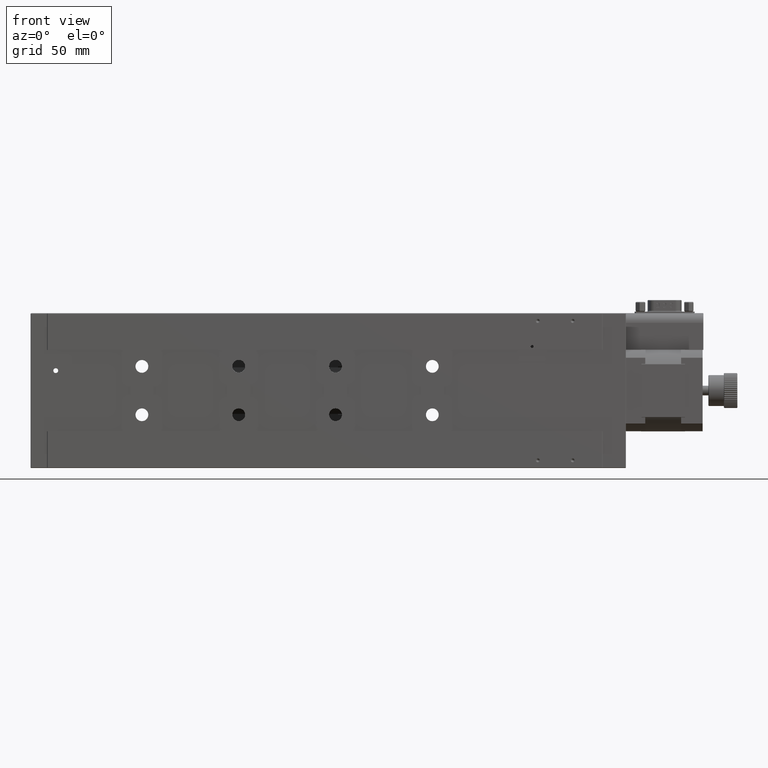
[diagram: clean part render]
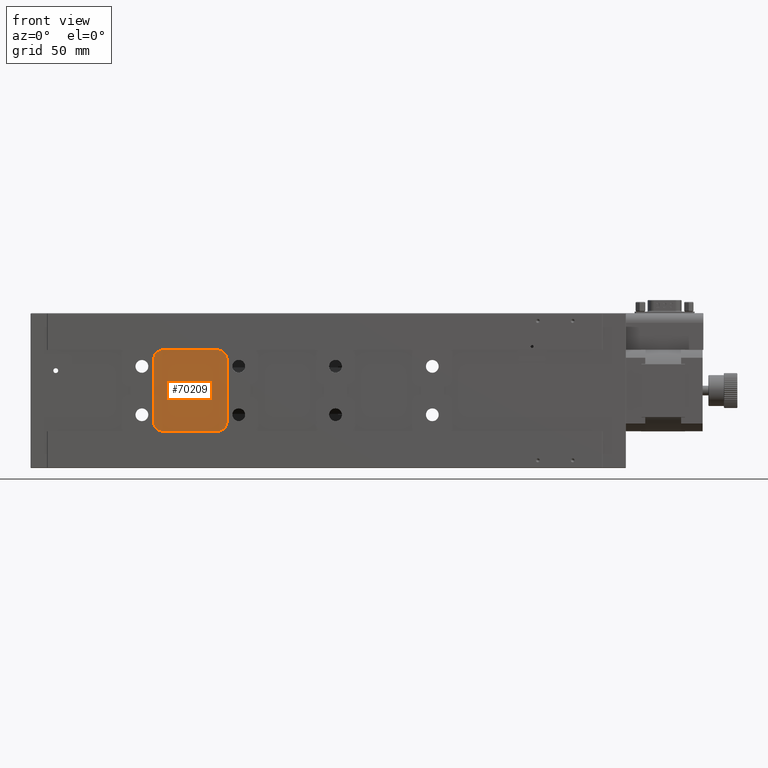
[diagram: same view with one face highlighted and labeled with its STEP entity id]
A machine part, front view. The second image highlights one B-rep face of the part: STEP entity #70209.
In plain terms, the highlighted planar face has unit normal (0, 1, -0).
Its self-contained STEP definition (entity closure, byte-faithful):
#854 = EDGE_LOOP ( 'NONE', ( #58645, #14808, #66844, #33172, #84370, #85587, #93631, #65727 ) ) ;
#1184 = CARTESIAN_POINT ( 'NONE',  ( 101.5000000000000600, 0.5000000000000000000, -18.99999999999999600 ) ) ;
#4372 = CARTESIAN_POINT ( 'NONE',  ( 68.50000000000005700, 0.5000000000000000000, -61.00000000000002100 ) ) ;
#8931 = FACE_OUTER_BOUND ( 'NONE', #854, .T. ) ;
#9090 = VERTEX_POINT ( 'NONE', #135899 ) ;
#9489 = EDGE_CURVE ( 'NONE', #49981, #110649, #121839, .T. ) ;
#9943 = CARTESIAN_POINT ( 'NONE',  ( 68.50000000000005700, 0.5000000000000000000, -56.00000000000002100 ) ) ;
#14139 = AXIS2_PLACEMENT_3D ( 'NONE', #82410, #93521, #27350 ) ;
#14808 = ORIENTED_EDGE ( 'NONE', *, *, #9489, .T. ) ;
#17827 = CARTESIAN_POINT ( 'NONE',  ( 63.50000000000005700, 0.5000000000000000000, -56.00000000000002100 ) ) ;
#18729 = DIRECTION ( 'NONE',  ( 0.0000000000000000000, 1.000000000000000000, -0.0000000000000000000 ) ) ;
#22169 = AXIS2_PLACEMENT_3D ( 'NONE', #40687, #51807, #62839 ) ;
#23272 = LINE ( 'NONE', #39804, #89009 ) ;
#26345 = DIRECTION ( 'NONE',  ( -0.0000000000000000000, -1.000000000000000000, 0.0000000000000000000 ) ) ;
#26407 = EDGE_CURVE ( 'NONE', #102928, #49981, #98461, .T. ) ;
#27350 = DIRECTION ( 'NONE',  ( 0.0000000000000000000, 0.0000000000000000000, 1.000000000000000000 ) ) ;
#29060 = CARTESIAN_POINT ( 'NONE',  ( 96.50000000000005700, 0.5000000000000000000, -18.99999999999999600 ) ) ;
#33172 = ORIENTED_EDGE ( 'NONE', *, *, #44182, .T. ) ;
#37099 = EDGE_CURVE ( 'NONE', #9090, #122104, #72004, .T. ) ;
#37413 = CARTESIAN_POINT ( 'NONE',  ( 63.50000000000005700, 0.5000000000000000000, -61.00000000000002100 ) ) ;
#38409 = CARTESIAN_POINT ( 'NONE',  ( 101.5000000000000600, 0.5000000000000000000, -23.99999999999999600 ) ) ;
#39804 = CARTESIAN_POINT ( 'NONE',  ( 63.50000000000005700, 0.5000000000000000000, -19.00000000000000400 ) ) ;
#40687 = CARTESIAN_POINT ( 'NONE',  ( 96.50000000000005700, 0.5000000000000000000, -23.99999999999999600 ) ) ;
#44182 = EDGE_CURVE ( 'NONE', #86930, #96649, #78204, .T. ) ;
#48561 = CARTESIAN_POINT ( 'NONE',  ( 96.50000000000005700, 0.5000000000000000000, -56.00000000000001400 ) ) ;
#49981 = VERTEX_POINT ( 'NONE', #126150 ) ;
#50473 = AXIS2_PLACEMENT_3D ( 'NONE', #48561, #26345, #89666 ) ;
#51807 = DIRECTION ( 'NONE',  ( -0.0000000000000000000, -1.000000000000000000, 0.0000000000000000000 ) ) ;
#55257 = DIRECTION ( 'NONE',  ( -1.652117596168386800E-016, 0.0000000000000000000, 1.000000000000000000 ) ) ;
#55548 = CARTESIAN_POINT ( 'NONE',  ( 63.50000000000005700, 0.5000000000000000000, -24.00000000000000400 ) ) ;
#55916 = AXIS2_PLACEMENT_3D ( 'NONE', #9943, #119453, #65420 ) ;
#58645 = ORIENTED_EDGE ( 'NONE', *, *, #26407, .T. ) ;
#62839 = DIRECTION ( 'NONE',  ( 0.0000000000000000000, 0.0000000000000000000, 1.000000000000000000 ) ) ;
#65420 = DIRECTION ( 'NONE',  ( 0.0000000000000000000, 0.0000000000000000000, 1.000000000000000000 ) ) ;
#65727 = ORIENTED_EDGE ( 'NONE', *, *, #90634, .T. ) ;
#66844 = ORIENTED_EDGE ( 'NONE', *, *, #100153, .T. ) ;
#69288 = DIRECTION ( 'NONE',  ( 1.000000000000000000, 0.0000000000000000000, 0.0000000000000000000 ) ) ;
#70209 = ADVANCED_FACE ( 'NONE', ( #8931 ), #105619, .F. ) ;
#71816 = CIRCLE ( 'NONE', #55916, 4.999999999999997300 ) ;
#72004 = CIRCLE ( 'NONE', #14139, 5.000000000000000900 ) ;
#72671 = EDGE_CURVE ( 'NONE', #96649, #9090, #141606, .T. ) ;
#77116 = EDGE_CURVE ( 'NONE', #122104, #127970, #23272, .T. ) ;
#78204 = CIRCLE ( 'NONE', #22169, 5.000000000000000900 ) ;
#82410 = CARTESIAN_POINT ( 'NONE',  ( 68.50000000000005700, 0.5000000000000000000, -24.00000000000000400 ) ) ;
#84370 = ORIENTED_EDGE ( 'NONE', *, *, #72671, .T. ) ;
#85587 = ORIENTED_EDGE ( 'NONE', *, *, #37099, .T. ) ;
#86930 = VERTEX_POINT ( 'NONE', #38409 ) ;
#89009 = VECTOR ( 'NONE', #95314, 1000.000000000000000 ) ;
#89666 = DIRECTION ( 'NONE',  ( 0.0000000000000000000, 0.0000000000000000000, 1.000000000000000000 ) ) ;
#90634 = EDGE_CURVE ( 'NONE', #127970, #102928, #71816, .T. ) ;
#93521 = DIRECTION ( 'NONE',  ( -0.0000000000000000000, -1.000000000000000000, 0.0000000000000000000 ) ) ;
#93631 = ORIENTED_EDGE ( 'NONE', *, *, #77116, .T. ) ;
#95314 = DIRECTION ( 'NONE',  ( 0.0000000000000000000, -0.0000000000000000000, -1.000000000000000000 ) ) ;
#95502 = CARTESIAN_POINT ( 'NONE',  ( 152.0000000000000300, 0.5000000000000000000, -40.00000000000000000 ) ) ;
#96649 = VERTEX_POINT ( 'NONE', #29060 ) ;
#98461 = LINE ( 'NONE', #37413, #101938 ) ;
#100153 = EDGE_CURVE ( 'NONE', #110649, #86930, #116928, .T. ) ;
#101404 = VECTOR ( 'NONE', #55257, 1000.000000000000000 ) ;
#101938 = VECTOR ( 'NONE', #69288, 1000.000000000000000 ) ;
#102928 = VERTEX_POINT ( 'NONE', #4372 ) ;
#105619 = PLANE ( 'NONE',  #132703 ) ;
#106077 = DIRECTION ( 'NONE',  ( 0.0000000000000000000, 0.0000000000000000000, 1.000000000000000000 ) ) ;
#110649 = VERTEX_POINT ( 'NONE', #119524 ) ;
#110895 = DIRECTION ( 'NONE',  ( -1.000000000000000000, -0.0000000000000000000, -1.826024711554533900E-016 ) ) ;
#112334 = VECTOR ( 'NONE', #110895, 1000.000000000000000 ) ;
#116928 = LINE ( 'NONE', #1184, #101404 ) ;
#119453 = DIRECTION ( 'NONE',  ( -0.0000000000000000000, -1.000000000000000000, 0.0000000000000000000 ) ) ;
#119524 = CARTESIAN_POINT ( 'NONE',  ( 101.5000000000000600, 0.5000000000000000000, -56.00000000000001400 ) ) ;
#121839 = CIRCLE ( 'NONE', #50473, 4.999999999999997300 ) ;
#122104 = VERTEX_POINT ( 'NONE', #55548 ) ;
#126150 = CARTESIAN_POINT ( 'NONE',  ( 96.50000000000005700, 0.5000000000000000000, -61.00000000000002100 ) ) ;
#127970 = VERTEX_POINT ( 'NONE', #17827 ) ;
#132703 = AXIS2_PLACEMENT_3D ( 'NONE', #95502, #18729, #106077 ) ;
#135899 = CARTESIAN_POINT ( 'NONE',  ( 68.50000000000005700, 0.5000000000000000000, -19.00000000000000400 ) ) ;
#141606 = LINE ( 'NONE', #142701, #112334 ) ;
#142701 = CARTESIAN_POINT ( 'NONE',  ( 63.50000000000005700, 0.5000000000000000000, -19.00000000000000400 ) ) ;